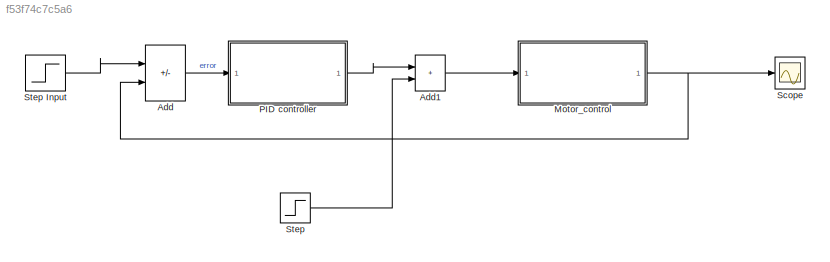
MODEL slx_f53f74c7c5a6
KIND model
CONFIG AbsTol = auto
CONFIG EnableMultiTasking = off
CONFIG FixedStep = auto
CONFIG MaxStep = auto
CONFIG MinStep = auto
CONFIG RelTol = 1e-3
CONFIG SampleTimeConstraint = Unconstrained
CONFIG SolverName = ode45
CONFIG StartTime = 0.0
CONFIG StopTime = 10.0
BLOCK [Sum] Add
  IconShape = rectangular
  Inputs = +-
  Ports = [2, 1]
BLOCK [Sum] Add1
  IconShape = rectangular
  Ports = [2, 1]
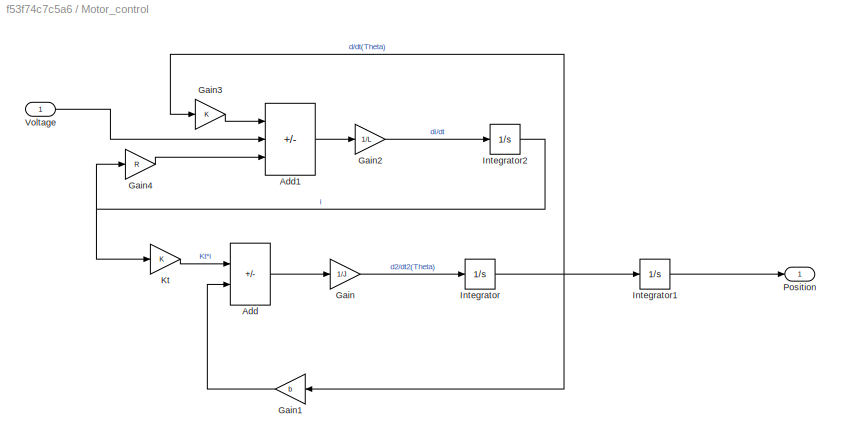
BLOCK [SubSystem] Motor_control
  Ports = [1, 1]
  RequestExecContextInheritance = off
BLOCK [Sum] Motor_control/Add
  IconShape = rectangular
  Inputs = +-
  Ports = [2, 1]
BLOCK [Sum] Motor_control/Add1
  IconShape = rectangular
  Inputs = -+-
  Ports = [3, 1]
BLOCK [Gain] Motor_control/Gain
  Gain = 1/J
BLOCK [Gain] Motor_control/Gain1
  Gain = b
  NameLocation = top
BLOCK [Gain] Motor_control/Gain2
  Gain = 1/L
BLOCK [Gain] Motor_control/Gain3
  Gain = K
BLOCK [Gain] Motor_control/Gain4
  Gain = R
BLOCK [Integrator] Motor_control/Integrator
  Ports = [1, 1]
BLOCK [Integrator] Motor_control/Integrator1
  Ports = [1, 1]
BLOCK [Integrator] Motor_control/Integrator2
  Ports = [1, 1]
BLOCK [Gain] Motor_control/Kt
  Gain = K
BLOCK [Outport] Motor_control/Position
BLOCK [Inport] Motor_control/Voltage
BLOCK [ModelReference] PID controller
  ModelNameDialog = PID_controller
  ModelReferenceVersion = 1.3
  Ports = [1, 1]
BLOCK [Scope] Scope
  Floating = off
  NumInputPorts = 1
  Ports = [1]
  ScopeSpecificationString = Simulink.scopes.TimeScopeBlockCfg('CurrentConfiguration', extmgr.ConfigurationSet(extmgr.Configuration('Core','General UI',true),extmgr.Configuration('Core','Source UI',true),extmgr.Configuration('Sources','WiredSimulink',true),extmgr.Configuration('Visuals','Time Domain',true,'SerializedDisplays',{struct('MinYLimReal','-0.15596','MaxYLimReal','1.40365','YLabelReal','','MinYLimMag','0.00000','MaxY...<+1406ch>
BLOCK [Step] Step
  NameLocation = top
  SampleTime = 0
  Time = 0
BLOCK [Step] Step Input
  SampleTime = 0
  Time = 0
LINE Add1:1 -> Motor_control:1
LINE Add:1 -> PID controller:1
LINE Motor_control/Add1:1 -> Motor_control/Gain2:1
LINE Motor_control/Add:1 -> Motor_control/Gain:1
LINE Motor_control/Gain1:1 -> Motor_control/Add:2
LINE Motor_control/Gain2:1 -> Motor_control/Integrator2:1
LINE Motor_control/Gain3:1 -> Motor_control/Add1:1
LINE Motor_control/Gain4:1 -> Motor_control/Add1:3
LINE Motor_control/Gain:1 -> Motor_control/Integrator:1
LINE Motor_control/Integrator1:1 -> Motor_control/Position:1
NET Motor_control/Integrator2:1 -> Motor_control/Gain4:1, Motor_control/Kt:1
NET Motor_control/Integrator:1 -> Motor_control/Gain1:1, Motor_control/Gain3:1, Motor_control/Integrator1:1
LINE Motor_control/Kt:1 -> Motor_control/Add:1
LINE Motor_control/Voltage:1 -> Motor_control/Add1:2
NET Motor_control:1 -> Add:2, Scope:1
LINE PID controller:1 -> Add1:1
LINE Step Input:1 -> Add:1
LINE Step:1 -> Add1:2
note: NET lines group one-source signal fan-out (src -> all destinations, sorted); 1:1 wires keep LINE
